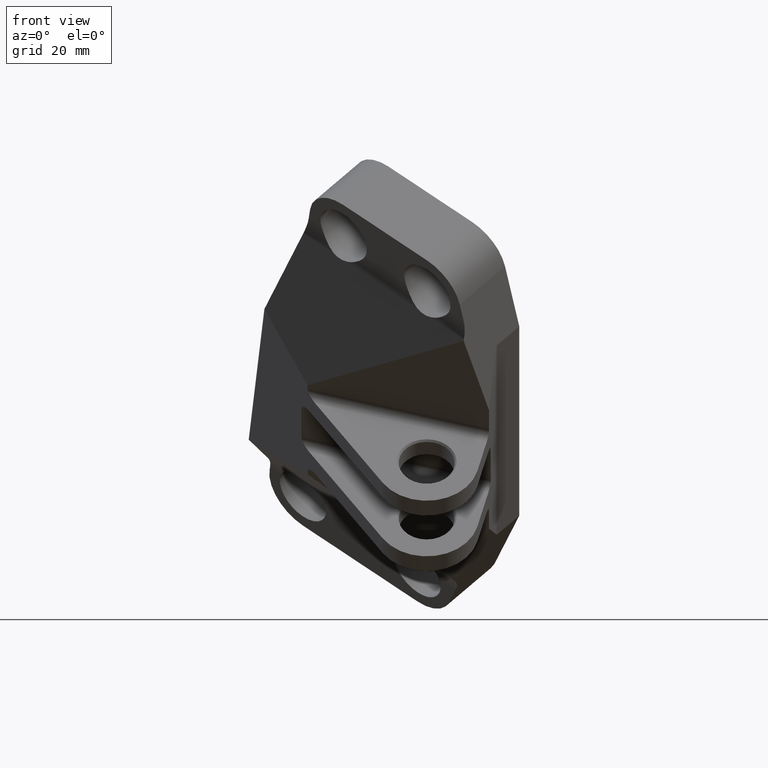
[diagram: clean part render]
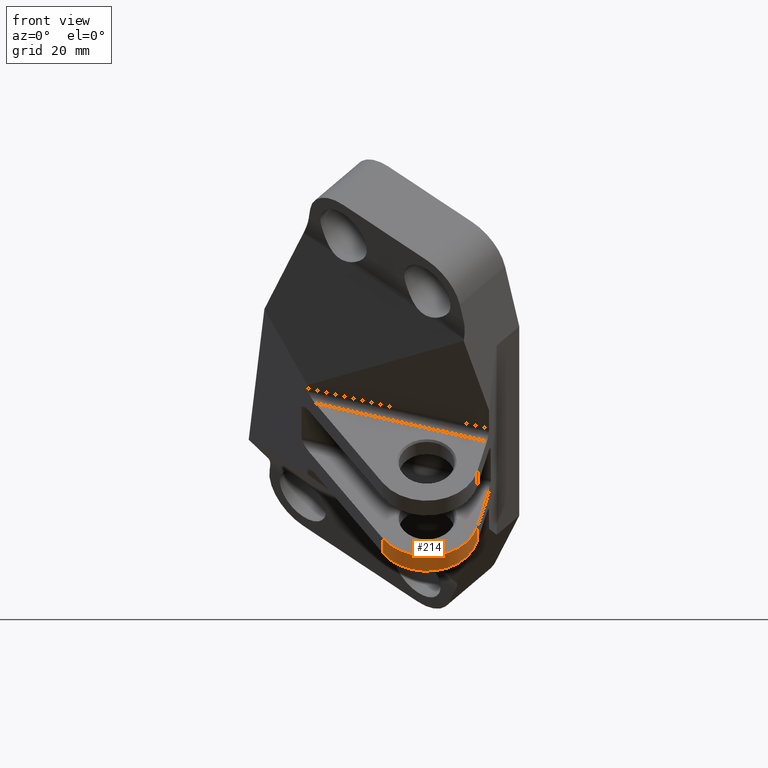
[diagram: same view with one face highlighted and labeled with its STEP entity id]
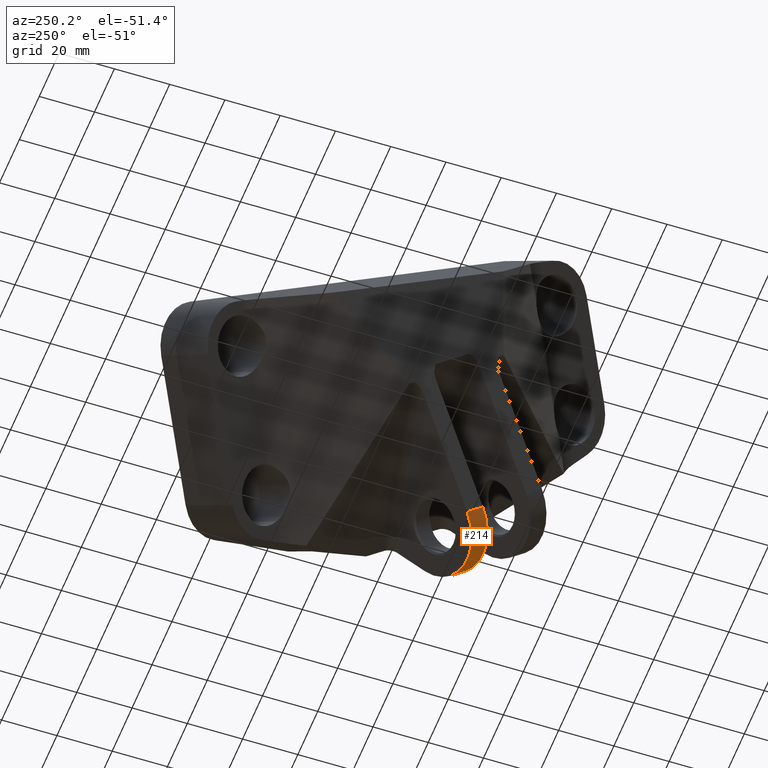
[diagram: same view with one face highlighted and labeled with its STEP entity id]
A machine part, front view. The second image highlights one B-rep face of the part: STEP entity #214.
A second angle (auxiliary view) of the same face is appended — the face is thin or edge-on in the first view.
In plain terms, the highlighted cylindrical surface (partial cylindrical patch) has radius 17.78 mm, axis along (-0, 0.749, -0.6626).
Its self-contained STEP definition (entity closure, byte-faithful):
#140=CYLINDRICAL_SURFACE('',#1177,0.7);
#178=FACE_OUTER_BOUND('',#361,.T.);
#214=ADVANCED_FACE('',(#178),#140,.T.);
#361=EDGE_LOOP('',(#725,#726,#727,#728));
#484=LINE('',#1786,#558);
#485=LINE('',#1787,#559);
#558=VECTOR('',#1426,1.);
#559=VECTOR('',#1427,1.);
#725=ORIENTED_EDGE('',*,*,#1048,.F.);
#726=ORIENTED_EDGE('',*,*,#1035,.T.);
#727=ORIENTED_EDGE('',*,*,#1049,.T.);
#728=ORIENTED_EDGE('',*,*,#1025,.F.);
#900=VERTEX_POINT('',#1732);
#902=VERTEX_POINT('',#1736);
#909=VERTEX_POINT('',#1753);
#912=VERTEX_POINT('',#1758);
#1025=EDGE_CURVE('',#902,#900,#1094,.T.);
#1035=EDGE_CURVE('',#909,#912,#1098,.T.);
#1048=EDGE_CURVE('',#909,#902,#484,.T.);
#1049=EDGE_CURVE('',#912,#900,#485,.T.);
#1094=CIRCLE('',#1164,0.7);
#1098=CIRCLE('',#1170,0.7);
#1164=AXIS2_PLACEMENT_3D('',#1737,#1382,#1383);
#1170=AXIS2_PLACEMENT_3D('',#1759,#1400,#1401);
#1177=AXIS2_PLACEMENT_3D('',#1788,#1428,#1429);
#1382=DIRECTION('',(-1.,0.,0.));
#1383=DIRECTION('',(0.,1.,0.));
#1400=DIRECTION('',(-1.,0.,0.));
#1401=DIRECTION('',(0.,0.,1.));
#1426=DIRECTION('',(-1.,0.,0.));
#1427=DIRECTION('',(-1.,0.,0.));
#1428=DIRECTION('',(-1.,0.,0.));
#1429=DIRECTION('',(0.,0.,1.));
#1732=CARTESIAN_POINT('',(-3.627,0.0826130085538108,3.17628462126428));
#1736=CARTESIAN_POINT('',(-3.627,-1.1882454656144,2.96425236510383));
#1737=CARTESIAN_POINT('',(-3.627,-0.507750619796024,2.80015859674375));
#1753=CARTESIAN_POINT('',(-3.327,-1.1882454656144,2.96425236510383));
#1758=CARTESIAN_POINT('',(-3.327,0.0826130085538108,3.17628462126428));
#1759=CARTESIAN_POINT('',(-3.327,-0.507750619796024,2.80015859674376));
#1786=CARTESIAN_POINT('',(-2.202,-1.1882454656144,2.96425236510383));
#1787=CARTESIAN_POINT('',(0.0854999999999957,0.0826130085538108,3.17628462126428));
#1788=CARTESIAN_POINT('',(0.0854999999999957,-0.507750619796024,2.80015859674376));